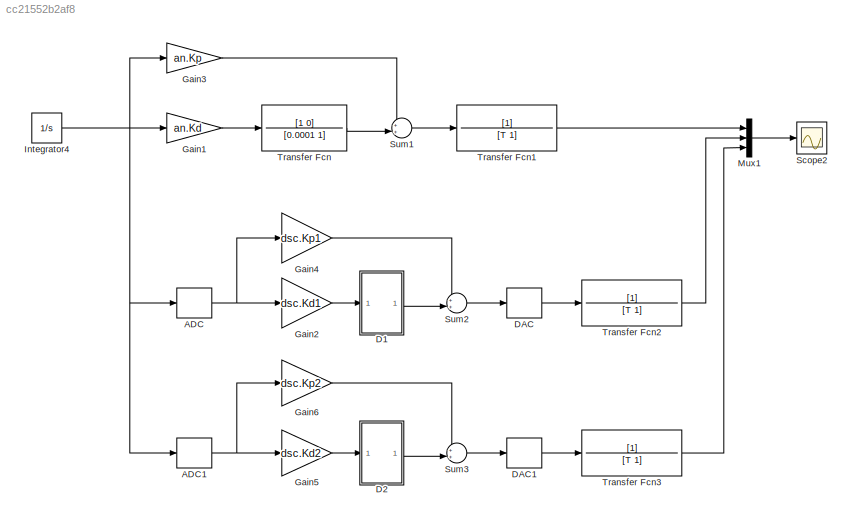
MODEL slx_cc21552b2af8
KIND model
CONFIG AbsTol = auto
CONFIG EnableMultiTasking = off
CONFIG FixedStep = To/100
CONFIG MaxStep = To/100
CONFIG MinStep = auto
CONFIG RelTol = 1e-3
CONFIG SampleTimeConstraint = Unconstrained
CONFIG SolverName = VariableStepAuto
CONFIG StartTime = 0.0
CONFIG StopTime = Tmdl
BLOCK [ZeroOrderHold] ADC
  SampleTime = To
BLOCK [ZeroOrderHold] ADC1
  SampleTime = To
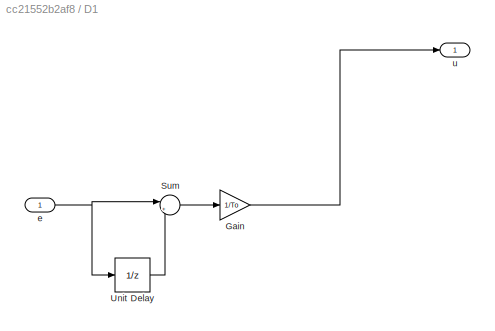
BLOCK [SubSystem] D1
  Ports = [1, 1]
  RequestExecContextInheritance = off
BLOCK [Gain] D1/Gain
  Gain = 1/To
BLOCK [Sum] D1/Sum
  Inputs = |+-
  Ports = [2, 1]
BLOCK [UnitDelay] D1/Unit Delay
  HasFrameUpgradeWarning = on
  SampleTime = -1
BLOCK [Inport] D1/e
BLOCK [Outport] D1/u
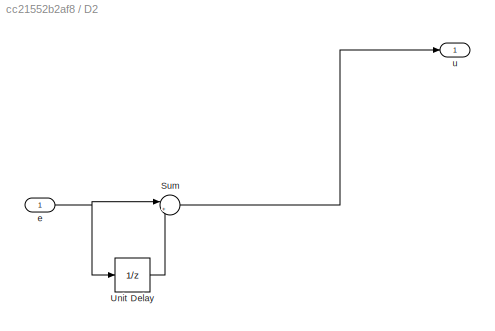
BLOCK [SubSystem] D2
  Ports = [1, 1]
  RequestExecContextInheritance = off
BLOCK [Sum] D2/Sum
  Inputs = |+-
  Ports = [2, 1]
BLOCK [UnitDelay] D2/Unit Delay
  HasFrameUpgradeWarning = on
  SampleTime = -1
BLOCK [Inport] D2/e
BLOCK [Outport] D2/u
BLOCK [ZeroOrderHold] DAC
  SampleTime = To
BLOCK [ZeroOrderHold] DAC1
  SampleTime = To
BLOCK [Gain] Gain1
  Gain = an.Kd
BLOCK [Gain] Gain2
  Gain = dsc.Kd1
BLOCK [Gain] Gain3
  Gain = an.Kp
BLOCK [Gain] Gain4
  Gain = dsc.Kp1
BLOCK [Gain] Gain5
  Gain = dsc.Kd2
BLOCK [Gain] Gain6
  Gain = dsc.Kp2
BLOCK [Integrator] Integrator4
  InitialCondition = 1
  Ports = [1, 1]
BLOCK [Mux] Mux1
  DisplayOption = bar
  Inputs = 3
  Ports = [3, 1]
BLOCK [Scope] Scope2
  Floating = off
  NumInputPorts = 1
  Ports = [1]
  ScopeSpecificationString = Simulink.scopes.TimeScopeBlockCfg('CurrentConfiguration', extmgr.ConfigurationSet(extmgr.Configuration('Core','General UI',true,'FigureColor',[1 1 1]),extmgr.Configuration('Core','Source UI',true),extmgr.Configuration('Sources','WiredSimulink',true,'DataLogging',true,'DataLoggingSaveFormat','Array','DataLoggingVariableName','y'),extmgr.Configuration('Visuals','Time Domain',true,'SerializedDisplays...<+1617ch>
BLOCK [Sum] Sum1
  Inputs = ++|
  Ports = [2, 1]
BLOCK [Sum] Sum2
  Inputs = ++|
  Ports = [2, 1]
BLOCK [Sum] Sum3
  Inputs = ++|
  Ports = [2, 1]
BLOCK [TransferFcn] Transfer Fcn
  Denominator = [0.0001 1]
  Numerator = [1 0]
BLOCK [TransferFcn] Transfer Fcn1
  Denominator = [T 1]
BLOCK [TransferFcn] Transfer Fcn2
  Denominator = [T 1]
BLOCK [TransferFcn] Transfer Fcn3
  Denominator = [T 1]
NET ADC1:1 -> Gain5:1, Gain6:1
NET ADC:1 -> Gain2:1, Gain4:1
LINE D1/Gain:1 -> D1/u:1
LINE D1/Sum:1 -> D1/Gain:1
LINE D1/Unit Delay:1 -> D1/Sum:2
NET D1/e:1 -> D1/Sum:1, D1/Unit Delay:1
LINE D1:1 -> Sum2:2
LINE D2/Sum:1 -> D2/u:1
LINE D2/Unit Delay:1 -> D2/Sum:2
NET D2/e:1 -> D2/Sum:1, D2/Unit Delay:1
LINE D2:1 -> Sum3:2
LINE DAC1:1 -> Transfer Fcn3:1
LINE DAC:1 -> Transfer Fcn2:1
LINE Gain1:1 -> Transfer Fcn:1
LINE Gain2:1 -> D1:1
LINE Gain3:1 -> Sum1:1
LINE Gain4:1 -> Sum2:1
LINE Gain5:1 -> D2:1
LINE Gain6:1 -> Sum3:1
NET Integrator4:1 -> ADC1:1, ADC:1, Gain1:1, Gain3:1
LINE Mux1:1 -> Scope2:1
LINE Sum1:1 -> Transfer Fcn1:1
LINE Sum2:1 -> DAC:1
LINE Sum3:1 -> DAC1:1
LINE Transfer Fcn1:1 -> Mux1:1
LINE Transfer Fcn2:1 -> Mux1:2
LINE Transfer Fcn3:1 -> Mux1:3
LINE Transfer Fcn:1 -> Sum1:2
note: NET lines group one-source signal fan-out (src -> all destinations, sorted); 1:1 wires keep LINE
